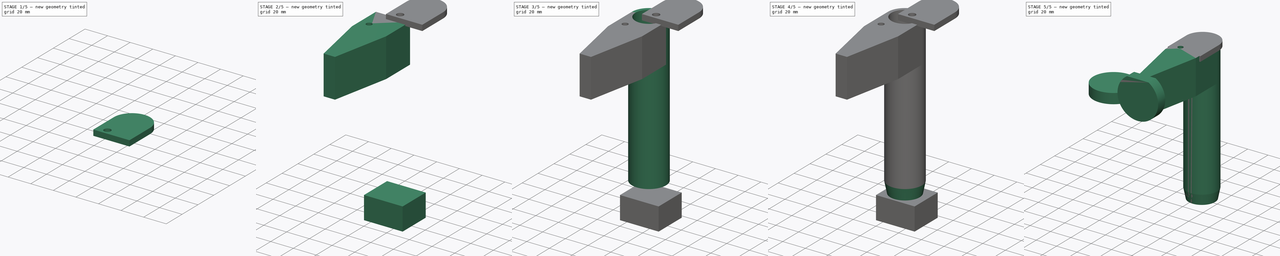
[diagram: build sequence overview — one tinted view per stage of 5, left to right]
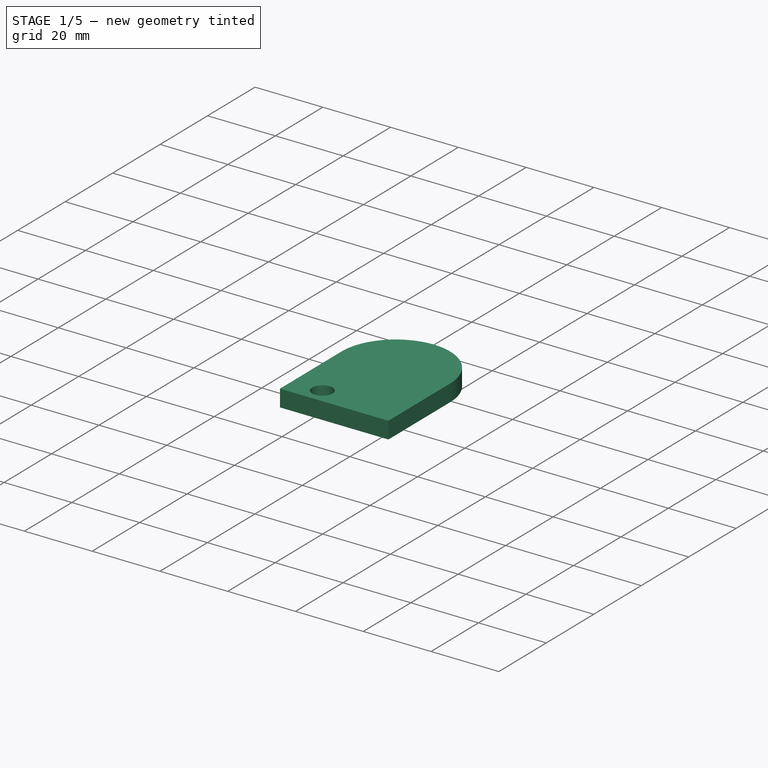
[diagram: stage 1 of 5 — iso view after this stage's code; geometry added in this stage tinted green]
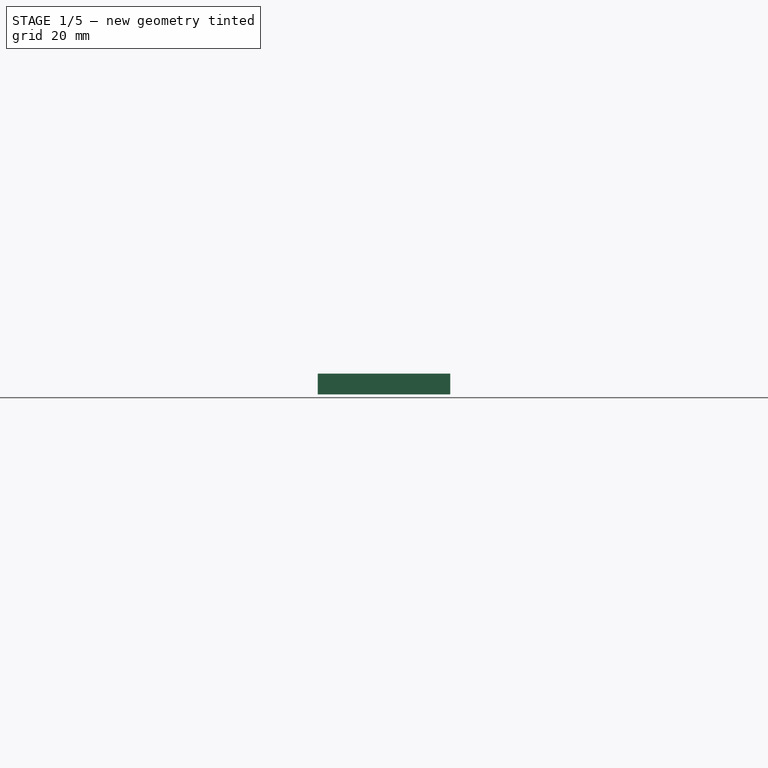
[diagram: stage 1 of 5 — front view after this stage's code; geometry added in this stage tinted green]
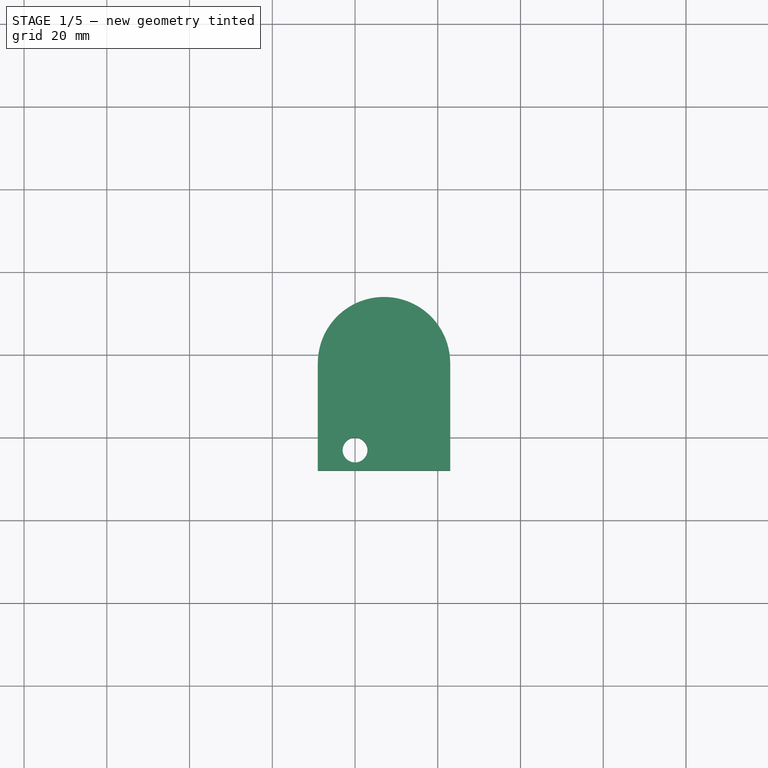
[diagram: stage 1 of 5 — top view after this stage's code; geometry added in this stage tinted green]
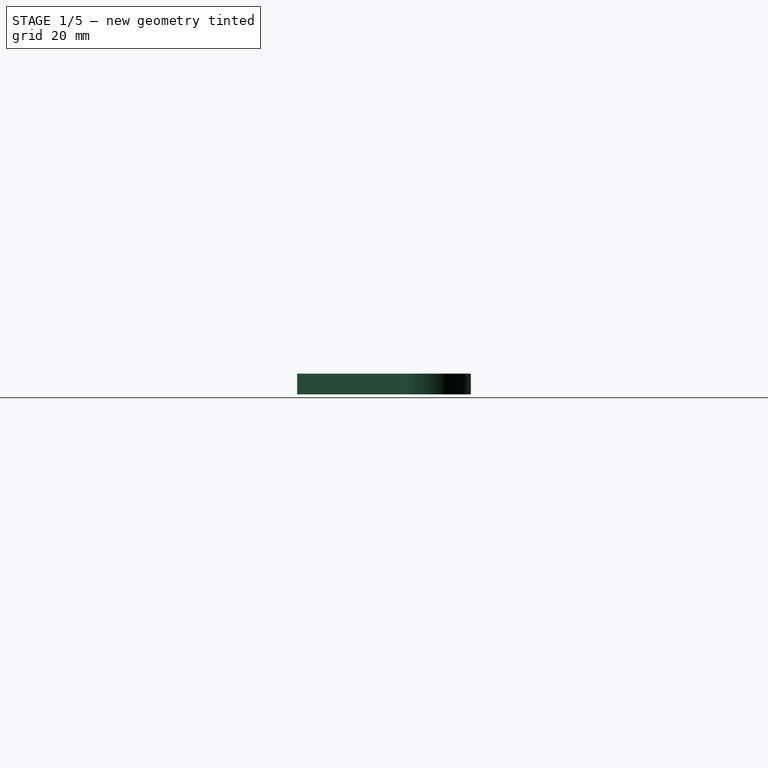
[diagram: stage 1 of 5 — right view after this stage's code; geometry added in this stage tinted green]
FCSTD DOCUMENT  (FreeCAD 0.16R6712 (Git))
Label: Herramienta Rotulador_v4_2
License: All rights reserved
LicenseURL: http://en.wikipedia.org/wiki/All_rights_reserved
objects: Part::Cut×7, Part::Cylinder×6, Part::Box×4, Part::MultiFuse×4, App::MeasureDistance×3, Part::Cone×2, Sketcher::SketchObject×2, PartDesign::Body×2, PartDesign::Pocket×1, Part::Chamfer×1
note: 30 computed .brp shape members not serialized (recipe doc carries the construction recipe); baked Part::Feature solids carry a one-line shape summary decoded from their .brp

FEATURE [Part::Cylinder] Cylinder008  label="Cilindro"
  Angle = 360
  Height = 5
  Placement = pos=(19,18,30) rot=(0,0,1;0rad)
  Radius = 16
FEATURE [Part::Box] Box003  label="Cubo002"
  Height = 5
  Length = 32
  Placement = pos=(3,-8,30) rot=(0,0,1;0rad)
  Width = 26
FEATURE [Part::MultiFuse] Fusion003
  Placement = pos=(28,40,3) rot=(0,0,1;0rad)
  Shapes = -> [Cylinder008,Box003]
FEATURE [Part::Cylinder] Cylinder009  label="Cilindro002"
  Angle = 360
  Height = 10
  Placement = pos=(40,37,28) rot=(0,0,1;0rad)
  Radius = 3
FEATURE [Part::Cut] Cut010  label="Tapa"
  Base = -> Fusion003
  Tool = -> Cylinder009
FEATURE [Sketcher::SketchObject] Sketch
  Placement = pos=(0,0,0) rot=(0.57735,0.57735,0.57735;2.0944rad)
FEATURE [PartDesign::Body] Body001  label="Tapa001"
FEATURE [App::MeasureDistance] Distance  label="Distance: 50,7638 mm"
  Distance = 49.79
  P1 = (41.9141,-23,38)
  P2 = (41.91,26.79,38)
FEATURE [App::MeasureDistance] Distance001  label="Distance: 29,9629 mm"
  Distance = 30
  P1 = (32,27,38)
  P2 = (62,27,38)
FEATURE [App::MeasureDistance] Distance002  label="Distance: 29,736 mm"
  Distance = 29.8228
  P1 = (32,26.5,38)
  P2 = (32,56.3228,38)
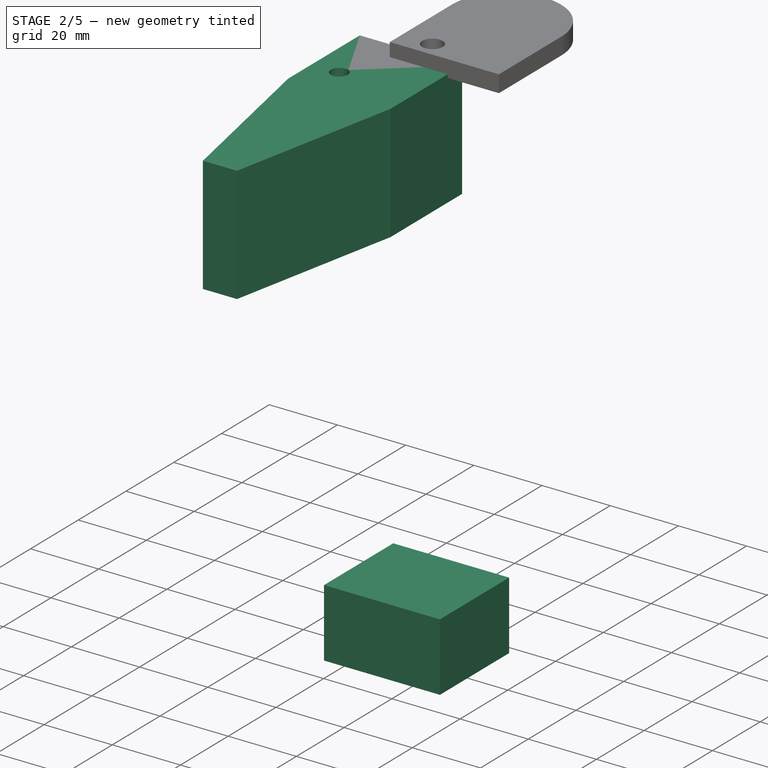
[diagram: stage 2 of 5 — iso view after this stage's code; geometry added in this stage tinted green]
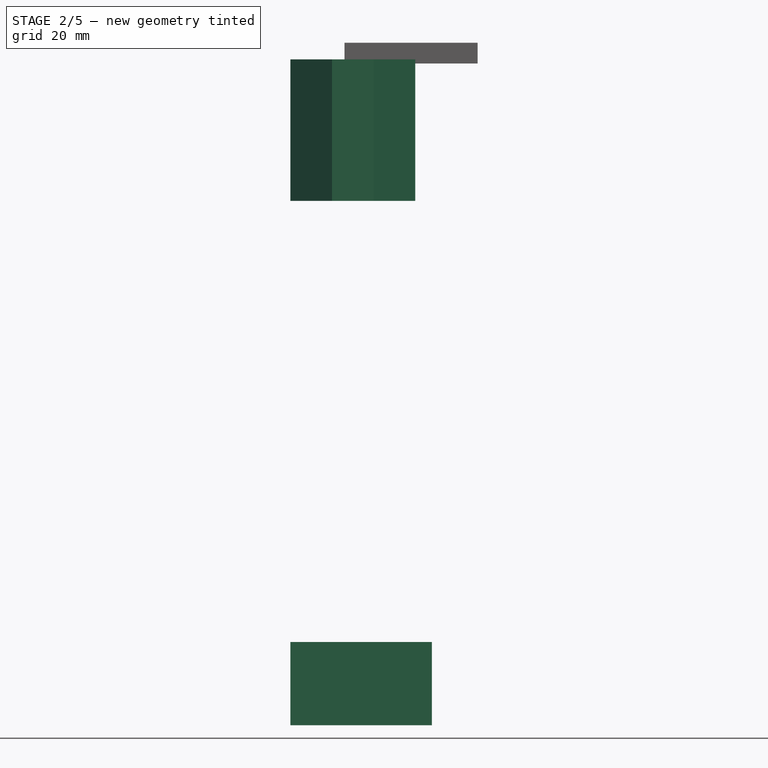
[diagram: stage 2 of 5 — front view after this stage's code; geometry added in this stage tinted green]
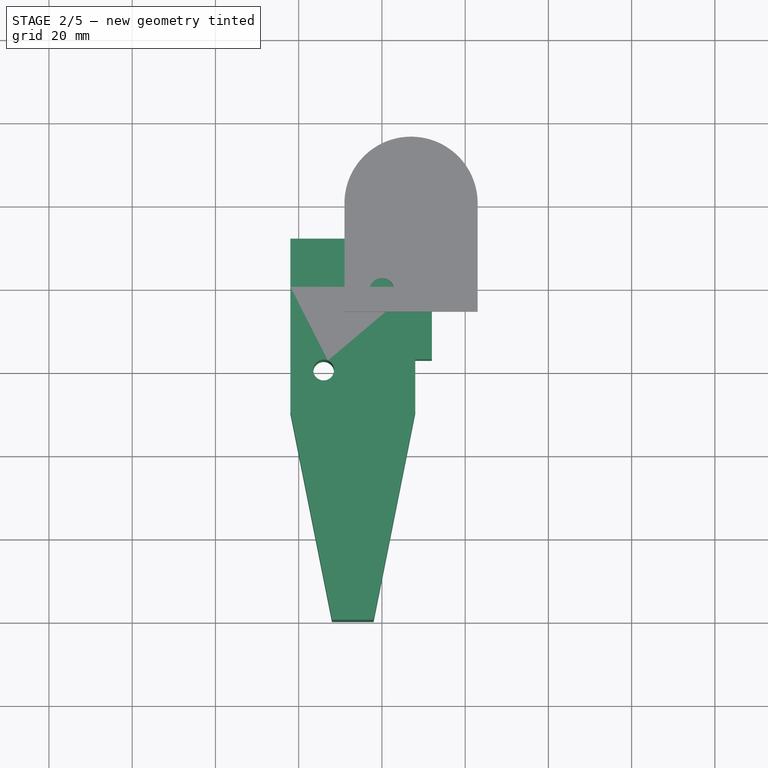
[diagram: stage 2 of 5 — top view after this stage's code; geometry added in this stage tinted green]
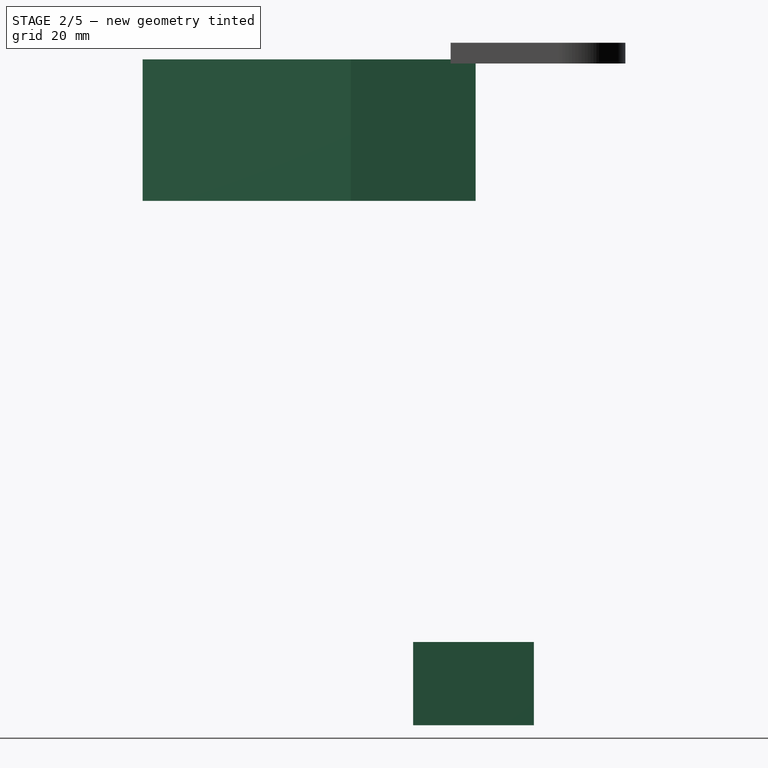
[diagram: stage 2 of 5 — right view after this stage's code; geometry added in this stage tinted green]
FEATURE [Part::Box] Box  label="Cubo base"
  Height = 34
  Length = 30
  Placement = pos=(-34,-42,18) rot=(0,0,1;0rad)
  Width = 80
FEATURE [Part::Cylinder] Cylinder005  label="Cilindro001"
  Angle = 360
  Height = 83
  Placement = pos=(26,18,-19) rot=(0,0,1;0rad)
  Radius = 2.5
FEATURE [Part::Chamfer] Chamfer
  Base = -> Box
  Edges = 2 edges: [Edge1 r1=50 r2=10,Edge5 r1=50 r2=10]
  Placement = pos=(52,0,-18) rot=(0,0,1;0rad)
FEATURE [Part::Cut] Cut007  label="Sujeción"
  Base = -> Chamfer
  Tool = -> Cylinder005
FEATURE [Part::Box] Box002  label="Cubo001"
  Height = 20
  Length = 34
  Placement = pos=(18,23,-126) rot=(0,0,1;0rad)
  Width = 29
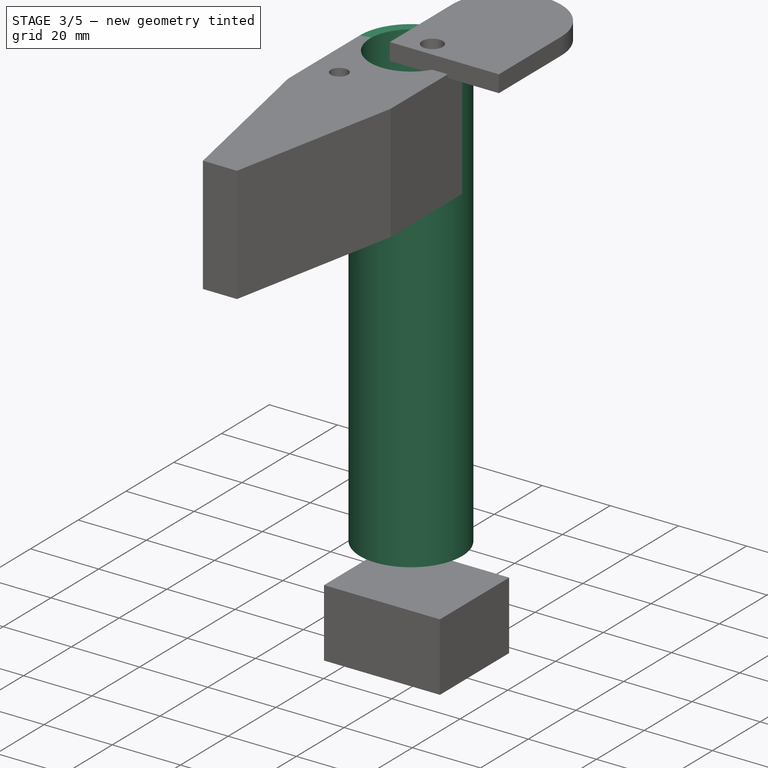
[diagram: stage 3 of 5 — iso view after this stage's code; geometry added in this stage tinted green]
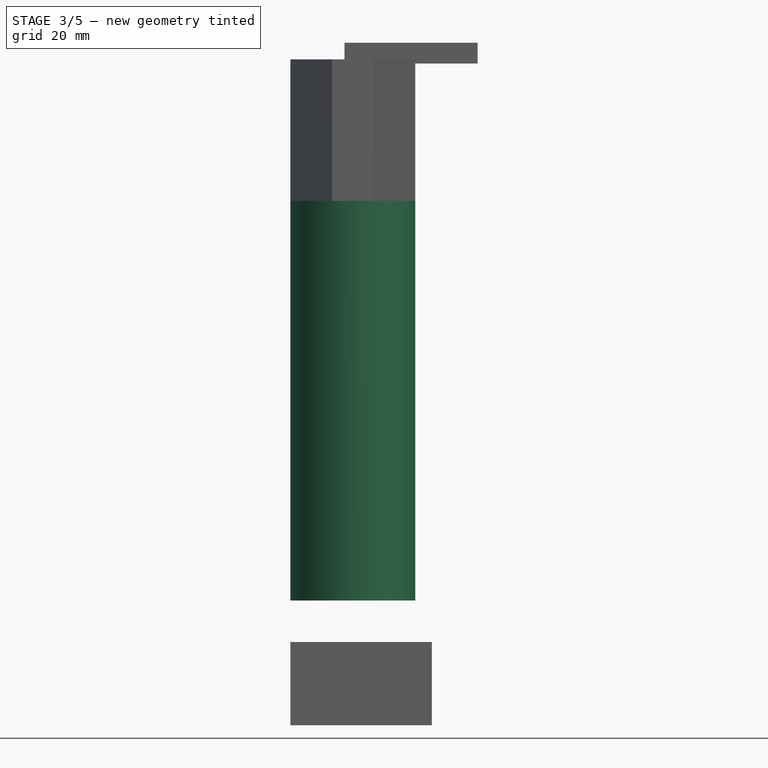
[diagram: stage 3 of 5 — front view after this stage's code; geometry added in this stage tinted green]
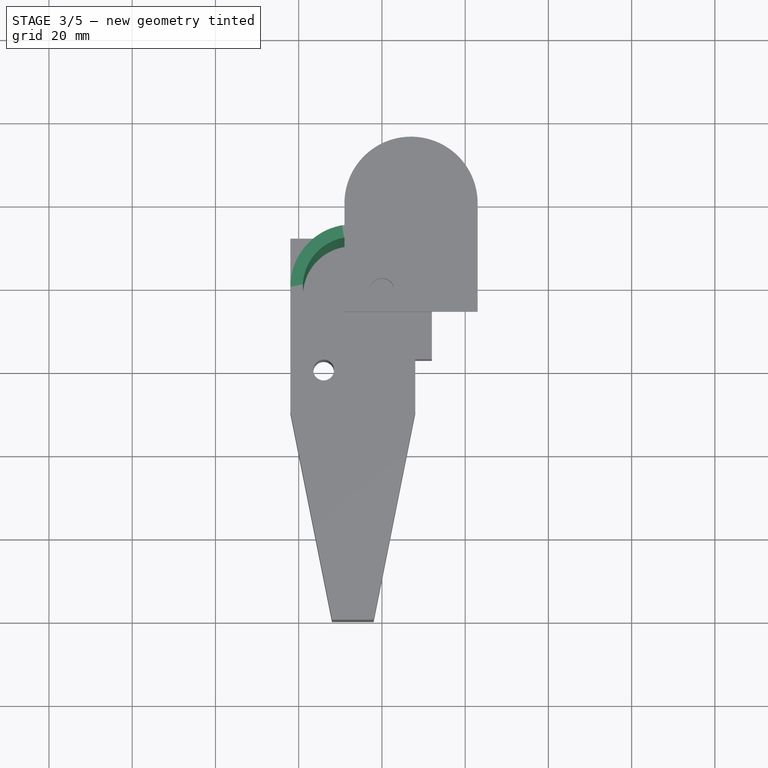
[diagram: stage 3 of 5 — top view after this stage's code; geometry added in this stage tinted green]
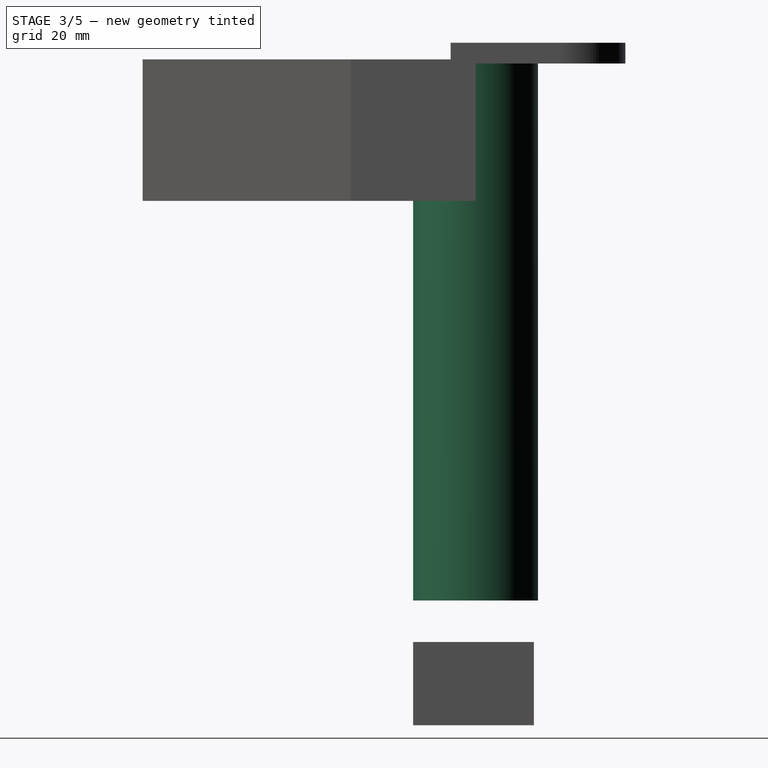
[diagram: stage 3 of 5 — right view after this stage's code; geometry added in this stage tinted green]
FEATURE [Part::Cylinder] Cylinder  label="Carcasa_v2"
  Angle = 360
  Height = 130
  Placement = pos=(-19,38,-120) rot=(0,0,1;0rad)
  Radius = 15
FEATURE [Part::Cylinder] Cylinder006  label="hueco rotulador_v2"
  Angle = 360
  Height = 140
  Placement = pos=(-19,38,-130) rot=(0,0,1;0rad)
  Radius = 12
FEATURE [Part::Cut] Cut  label="Carcasa_v2_1"
  Base = -> Cylinder
  Placement = pos=(52,0,24) rot=(0,0,1;0rad)
  Tool = -> Cylinder006
FEATURE [Part::Cylinder] Cylinder007  label="Carcasa_v003"
  Angle = 360
  Height = 130
  Placement = pos=(33,38,-96) rot=(0,0,1;0rad)
  Radius = 15
FEATURE [Part::Cut] Cut008  label="Sujeción_v2"
  Base = -> Cut007
  Tool = -> Cylinder007
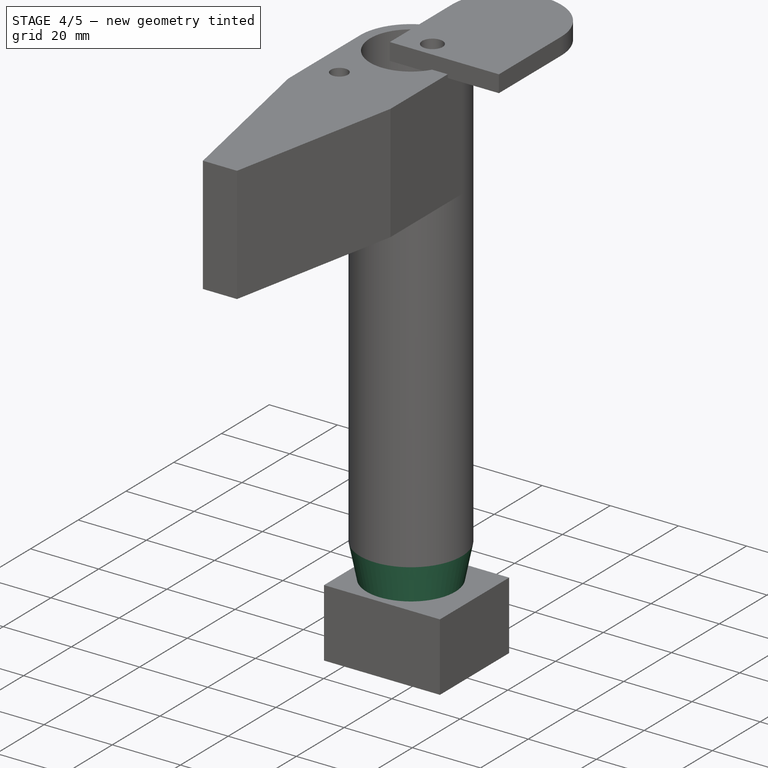
[diagram: stage 4 of 5 — iso view after this stage's code; geometry added in this stage tinted green]
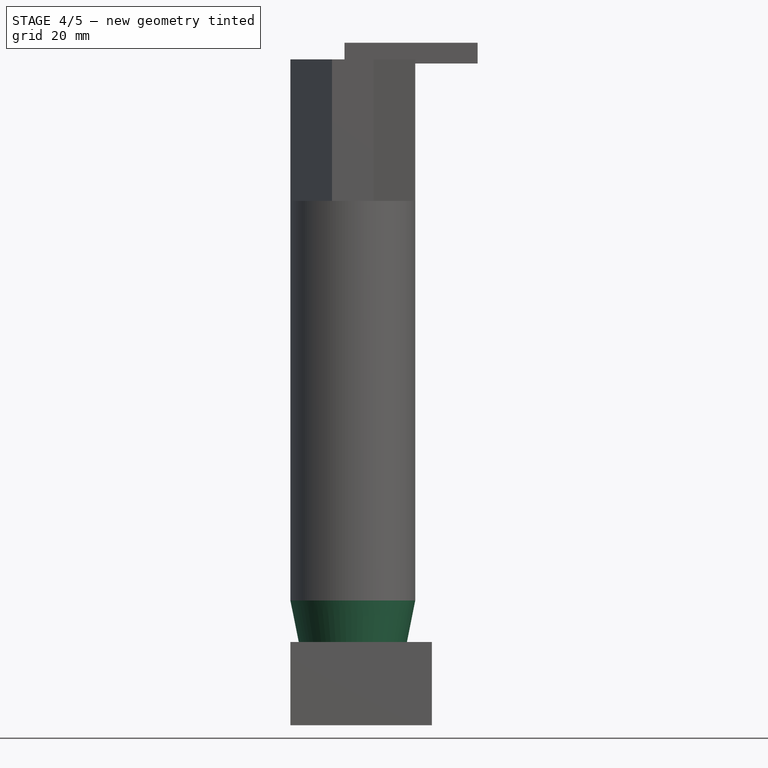
[diagram: stage 4 of 5 — front view after this stage's code; geometry added in this stage tinted green]
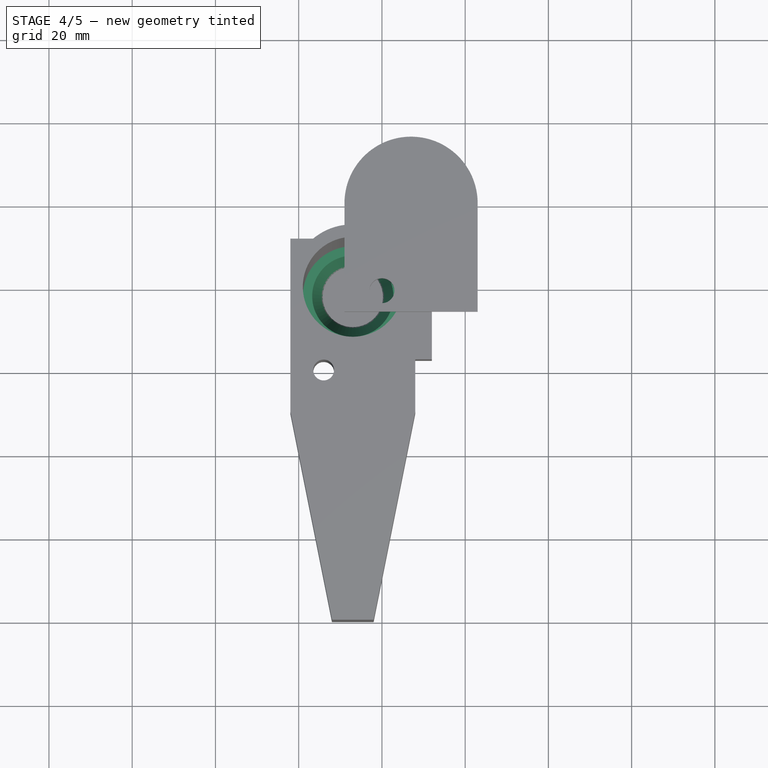
[diagram: stage 4 of 5 — top view after this stage's code; geometry added in this stage tinted green]
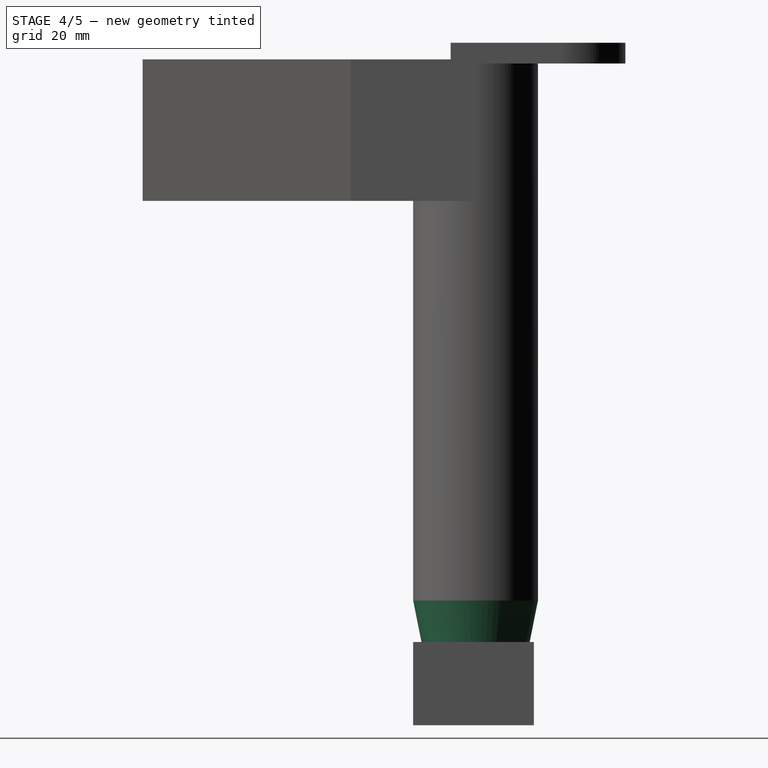
[diagram: stage 4 of 5 — right view after this stage's code; geometry added in this stage tinted green]
FEATURE [Part::Cone] Cone  label="Punta ext"
  Angle = 360
  Height = 25
  Placement = pos=(0,23,-136) rot=(0,0,1;0rad)
  Radius1 = 10
  Radius2 = 15
FEATURE [Part::Cone] Cone001  label="Punta int"
  Angle = 360
  Height = 27
  Placement = pos=(0,23,-137) rot=(0,0,1;0rad)
  Radius1 = 3.25
  Radius2 = 10
FEATURE [Part::Cut] Cut002  label="Punta"
  Base = -> Cone
  Placement = pos=(33,15,15) rot=(0,0,1;0rad)
  Tool = -> Cone001
FEATURE [Part::MultiFuse] Fusion  label="Sujeción/carcasa_v2"
  Shapes = -> [Cut008,Cut]
FEATURE [Part::MultiFuse] Fusion001  label="Carcasa/sujeción/punta_v2"
  Shapes = -> [Cut002,Fusion]
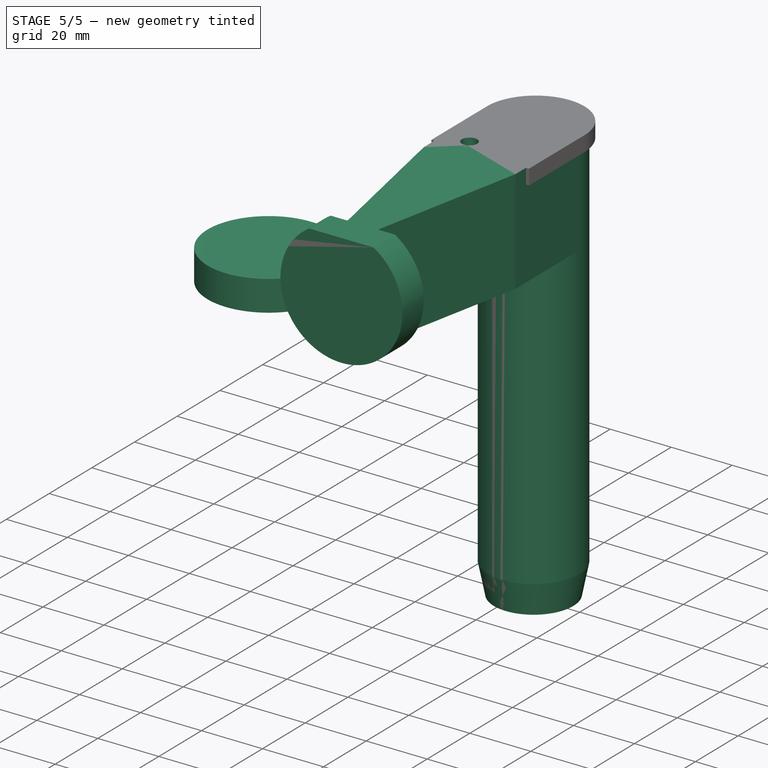
[diagram: stage 5 of 5 — iso view after this stage's code; geometry added in this stage tinted green]
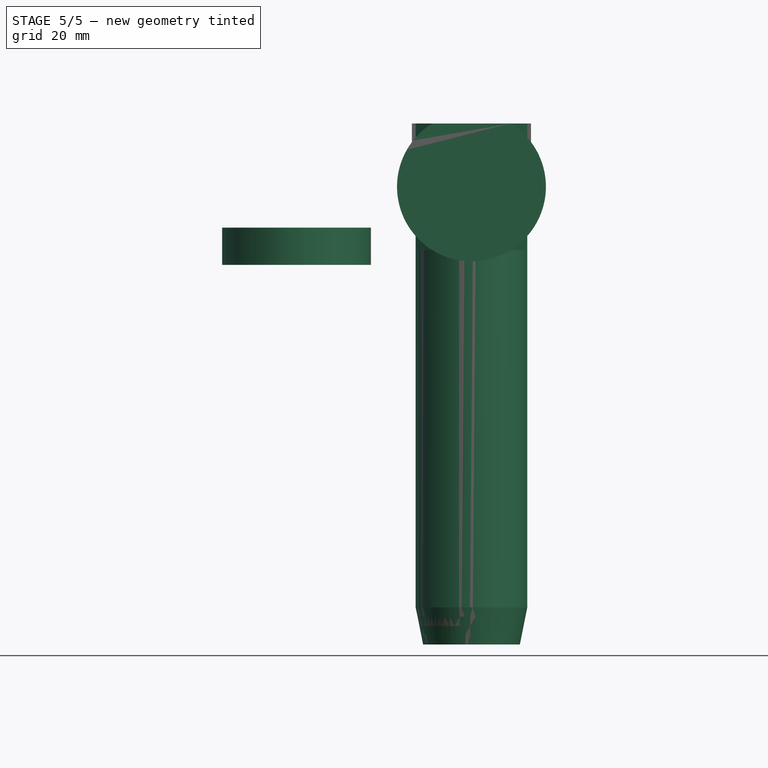
[diagram: stage 5 of 5 — front view after this stage's code; geometry added in this stage tinted green]
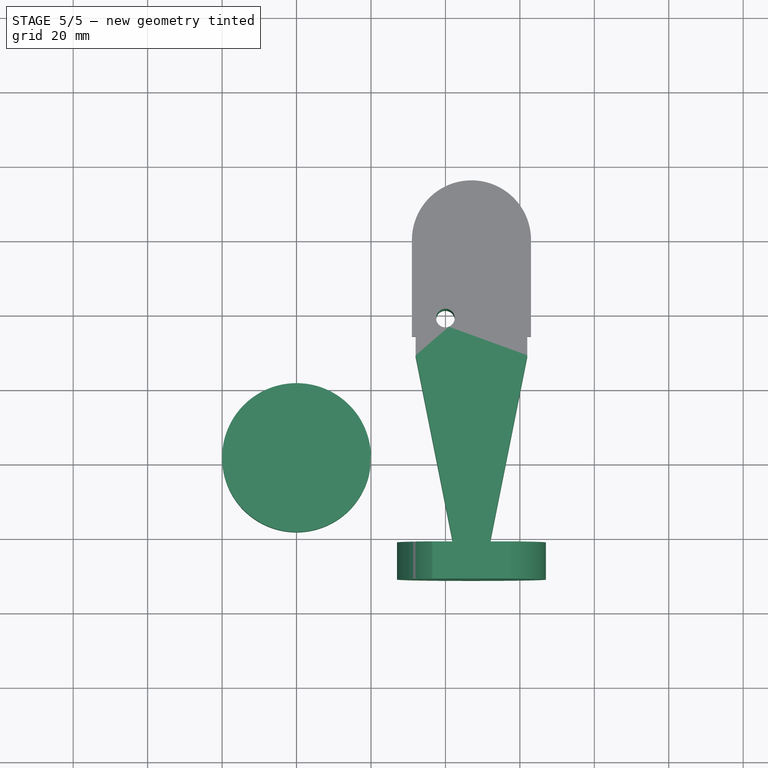
[diagram: stage 5 of 5 — top view after this stage's code; geometry added in this stage tinted green]
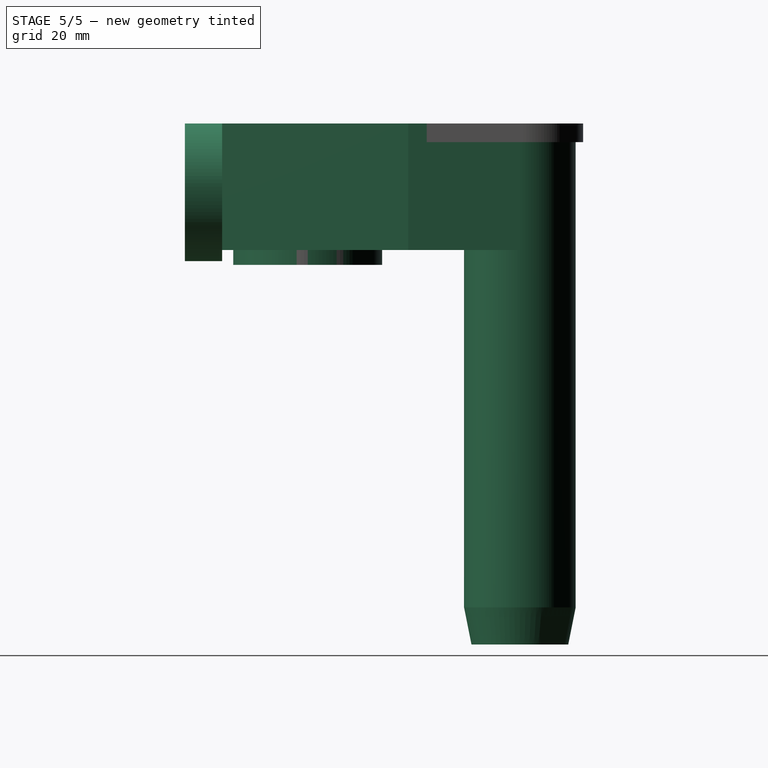
[diagram: stage 5 of 5 — right view after this stage's code; geometry added in this stage tinted green]
FEATURE [Sketcher::SketchObject] Sketch012
  Placement = pos=(28,40,3) rot=(0,0,1;0rad)
  sketch-geometry (9):
    g0: Circle [constr] CenterX=0 CenterY=0 CenterZ=0 NormalX=0 NormalY=0 NormalZ=1 Radius=15.75
    g1: Circle CenterX=-11.1369 CenterY=11.1369 CenterZ=0 NormalX=0 NormalY=0 NormalZ=1 Radius=2.9
    g2: Circle CenterX=11.1369 CenterY=11.1369 CenterZ=0 NormalX=0 NormalY=0 NormalZ=1 Radius=2.9
    g3: Circle CenterX=11.1408 CenterY=-11.1331 CenterZ=0 NormalX=0 NormalY=0 NormalZ=1 Radius=2.9
    g4: Circle CenterX=-11.1369 CenterY=-11.1369 CenterZ=0 NormalX=0 NormalY=0 NormalZ=1 Radius=2.9
    g5: LineSegment [constr] StartX=-11.1292 StartY=11.1369 StartZ=0 EndX=11.1408 EndY=11.1369 EndZ=0
    g6: LineSegment [constr] StartX=11.1408 StartY=11.1369 StartZ=0 EndX=11.1408 EndY=-11.1331 EndZ=0
    g7: LineSegment [constr] StartX=11.1408 StartY=-11.1331 StartZ=0 EndX=-11.1292 EndY=-11.1331 EndZ=0
    g8: LineSegment [constr] StartX=-11.1292 StartY=-11.1331 StartZ=0 EndX=-11.1292 EndY=11.1369 EndZ=0
  constraints (21):
    c: Coincident(g0,g-1)
    c: Radius(g0) = 15.75
    c: PointOnObject(g1,g0)
    c: PointOnObject(g3,g0)
    c: Radius(g1) = 2.9
    c: Equal(g1,g4)
    c: Equal(g4,g3)
    c: Equal(g3,g2)
    c: Coincident(g5,g6)
    c: Coincident(g6,g7)
    c: Coincident(g7,g8)
    c: Coincident(g8,g5)
    c: Horizontal(g5)
    c: Horizontal(g7)
    c: Vertical(g6)
    c: Vertical(g8)
    c: Coincident(g6,g3)
    c: Equal(g6,g7)
    c: Equal(g7,g8)
    c: Equal(g8,g5)
    c: DistanceX(g5,g5) = 22.27
FEATURE [PartDesign::Body] Body  label="Brida"
  Placement = pos=(-17,-42,2.5) rot=(1,0,0;1.5708rad)
FEATURE [PartDesign::Pocket] Pocket
  Length = 11
  Type = 0
FEATURE [Part::Box] Box001  label="Cubo"
  Height = 10
  Length = 53
  Placement = pos=(-40,-52,19.5) rot=(0,0,1;0rad)
  Width = 10
FEATURE [Part::Cut] Cut006
  Base = -> Body
  Placement = pos=(50,0,14.5) rot=(0,0,1;0rad)
  Tool = -> Box001
FEATURE [Part::MultiFuse] Fusion002  label="Final_v2"
  Shapes = -> [Cut006,Fusion001]
FEATURE [Part::Cut] Cut009  label="final"
  Base = -> Fusion002
  Placement = pos=(14,19,4) rot=(0,0,1;0rad)
  Tool = -> Box002
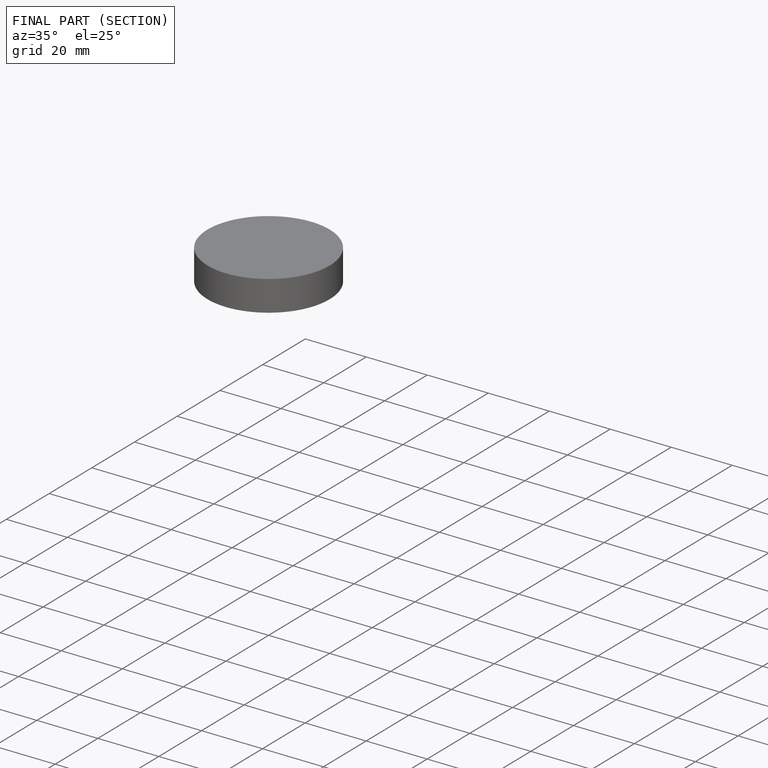
[diagram: finished part — half-section view (interior)]
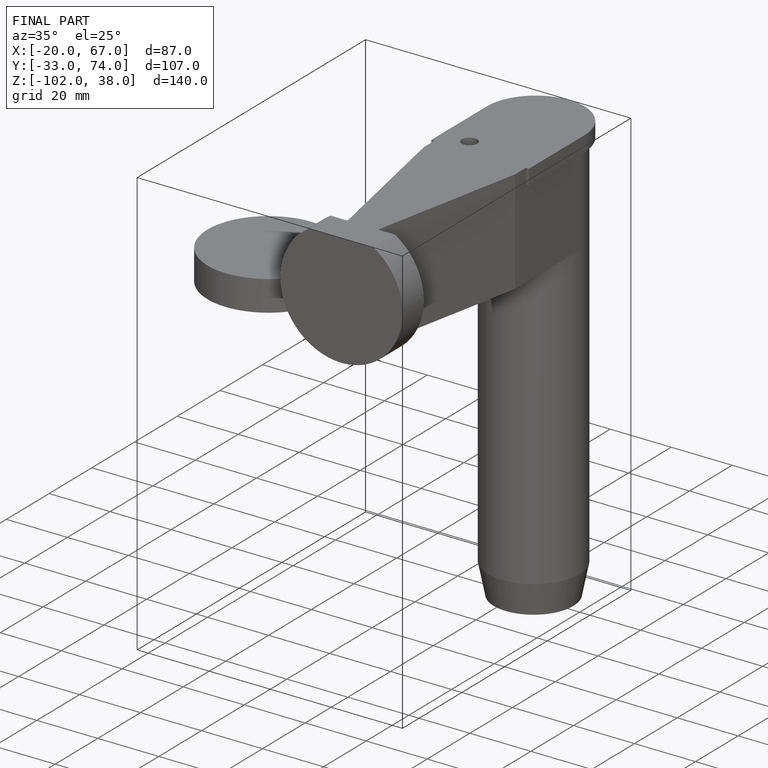
[diagram: finished part — iso view with bounding-box wireframe]
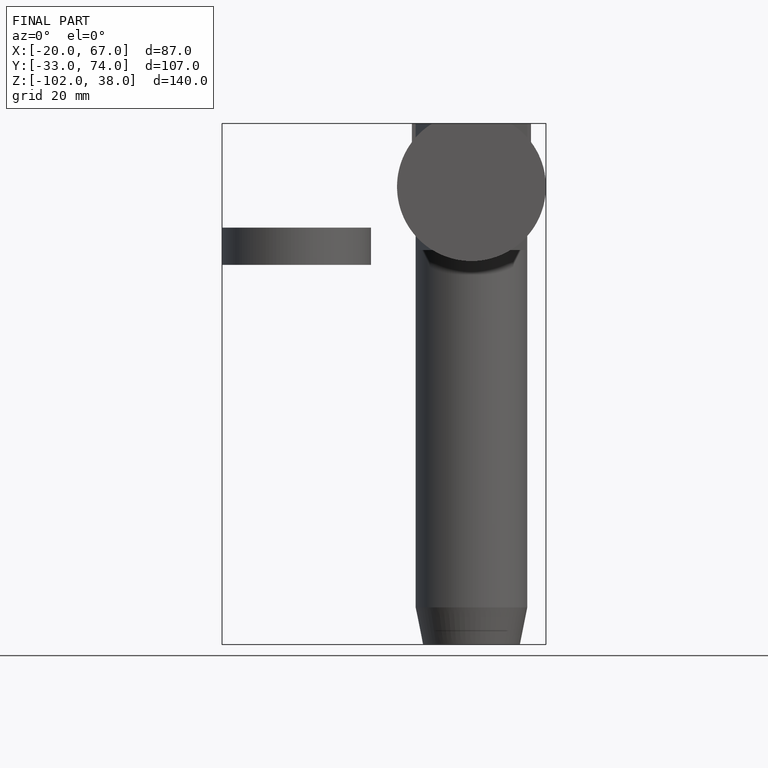
[diagram: finished part — front view with bounding-box wireframe]
